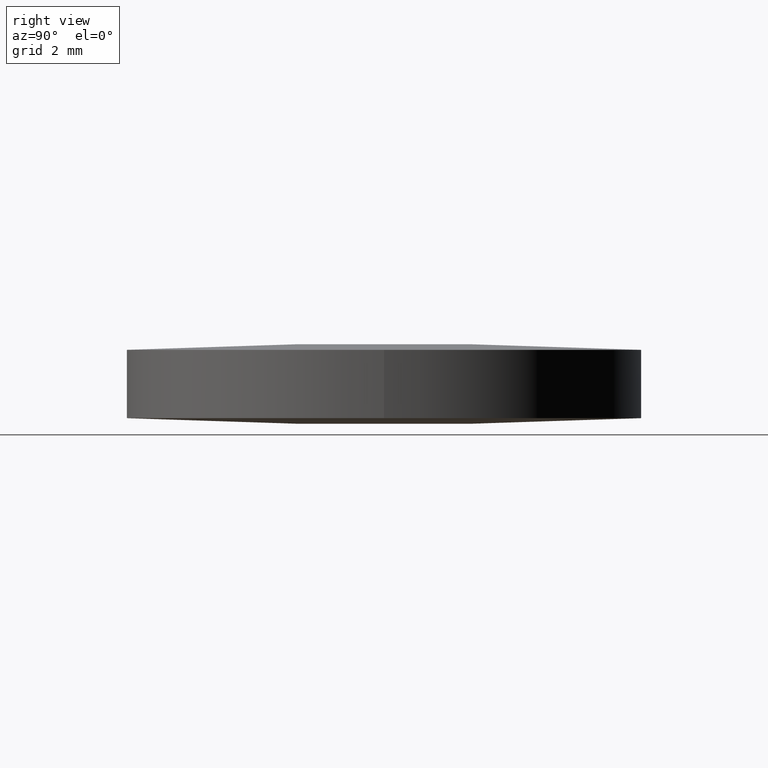
[diagram: clean part render]
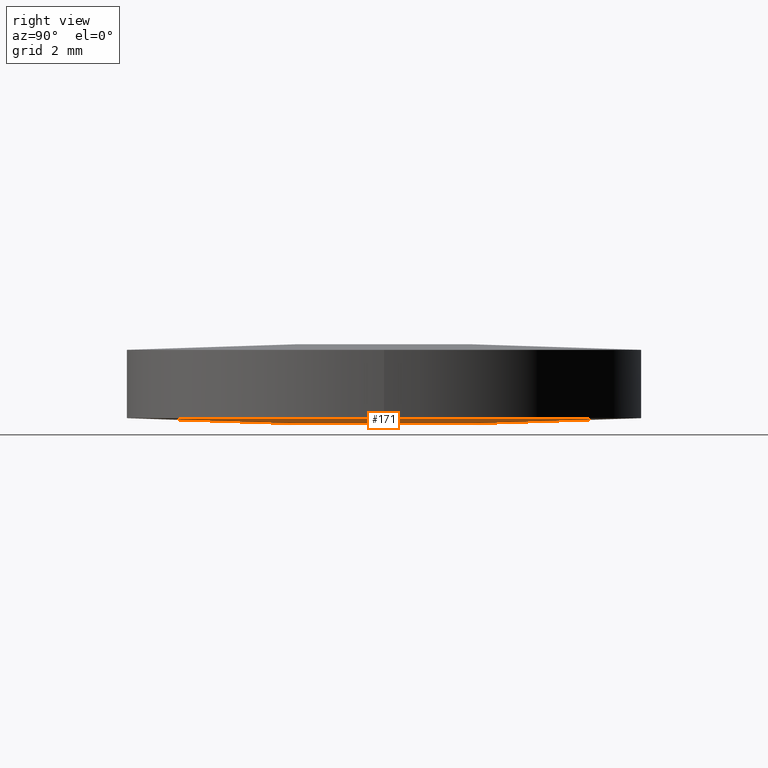
[diagram: same view with one face highlighted and labeled with its STEP entity id]
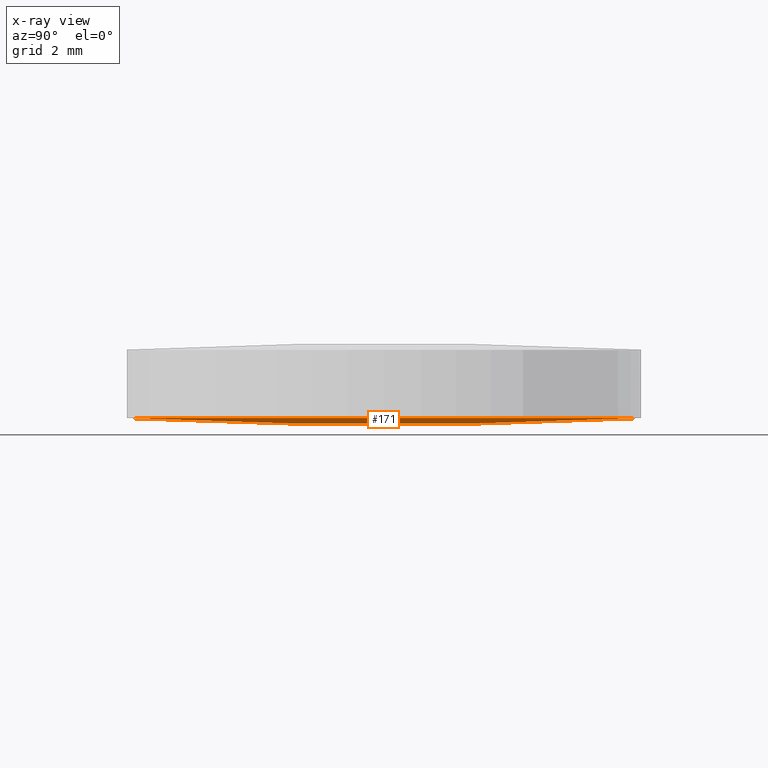
[diagram: x-ray of the same camera — body ghosted, the highlighted face saturated]
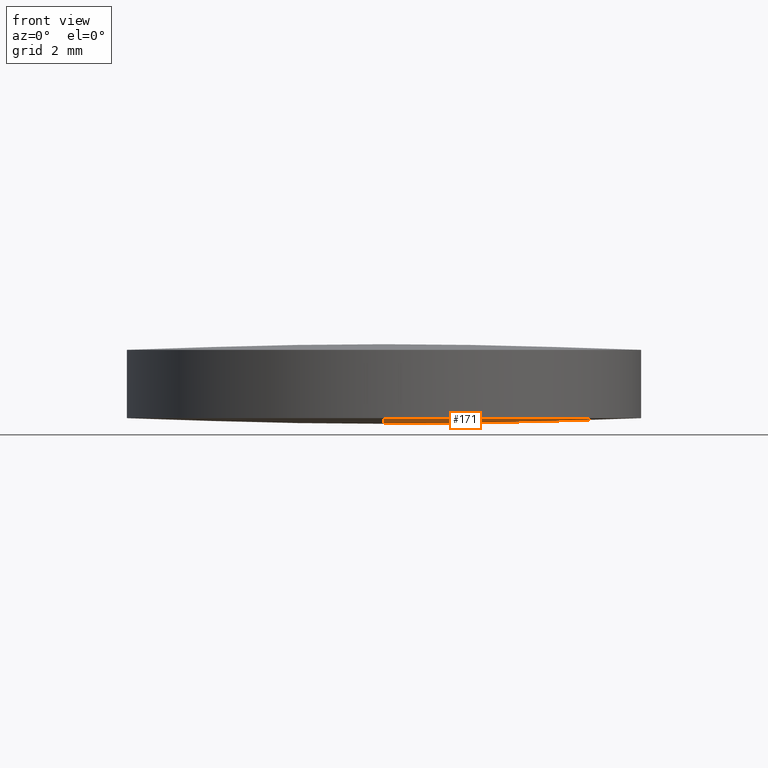
[diagram: same view with one face highlighted and labeled with its STEP entity id]
A machine part, right view. The second image highlights one B-rep face of the part: STEP entity #171.
The next image is the same camera in x-ray: the body ghosted, the highlighted face saturated — about 0% of this face is hidden behind the body in this view.
A second angle (front view) of the same face is appended — the face is thin or edge-on in the first view.
In plain terms, the highlighted face is a freeform B-spline surface patch.
Its self-contained STEP definition (entity closure, byte-faithful):
#6 = AXIS2_PLACEMENT_3D ( 'NONE', #287, #16, #84 ) ;
#14 = CARTESIAN_POINT ( 'NONE',  ( 1.990587361894917900E-014, 6.426137571815884200, 0.1597864493476375300 ) ) ;
#16 = DIRECTION ( 'NONE',  ( -0.0000000000000000000, -0.0000000000000000000, -1.000000000000000000 ) ) ;
#19 = AXIS2_PLACEMENT_3D ( 'NONE', #210, #139, #185 ) ;
#33 = CARTESIAN_POINT ( 'NONE',  ( 2.127807646056743900, 6.426137571815883300, 0.1597864493476376100 ) ) ;
#45 = CARTESIAN_POINT ( 'NONE',  ( 6.349999999999999600, 1.221245327087670000E-015, 0.1560202719460870000 ) ) ;
#57 = CARTESIAN_POINT ( 'NONE',  ( 1.895048814194306300E-014, 2.143812045025231100, -0.05330606618906481900 ) ) ;
#58 = CARTESIAN_POINT ( 'NONE',  ( 1.798689765139404300E-014, -2.143812045025180100, -0.05330606618906638000 ) ) ;
#81 = CARTESIAN_POINT ( 'NONE',  ( 6.380174810760535400, -6.426137571815834400, 0.3174890719976943300 ) ) ;
#84 = DIRECTION ( 'NONE',  ( 1.000000000000000000, 0.0000000000000000000, 0.0000000000000000000 ) ) ;
#97 = EDGE_LOOP ( 'NONE', ( #144, #141, #113 ) ) ;
#98 = CARTESIAN_POINT ( 'NONE',  ( 2.127807646056740800, -6.426137571815833600, 0.1597864493476376100 ) ) ;
#99 = VERTEX_POINT ( 'NONE', #177 ) ;
#113 = ORIENTED_EDGE ( 'NONE', *, *, #278, .T. ) ;
#114 = VERTEX_POINT ( 'NONE', #205 ) ;
#124 = DIRECTION ( 'NONE',  ( 1.000000000000000000, 1.776356839400250500E-015, 0.0000000000000000000 ) ) ;
#132 = CARTESIAN_POINT ( 'NONE',  ( 6.390702650715328800, -2.143812045025181400, 0.1046567794205416900 ) ) ;
#134 = CARTESIAN_POINT ( 'NONE',  ( 6.390702650715329700, 2.143812045025229800, 0.1046567794205432900 ) ) ;
#136 = CARTESIAN_POINT ( 'NONE',  ( 2.131318712605339900, -2.143812045025180500, -0.05330606618906632400 ) ) ;
#139 = DIRECTION ( 'NONE',  ( 1.000000000000000000, -2.247376333165669900E-016, 3.291634602124400000E-017 ) ) ;
#141 = ORIENTED_EDGE ( 'NONE', *, *, #211, .T. ) ;
#144 = ORIENTED_EDGE ( 'NONE', *, *, #186, .T. ) ;
#155 = CARTESIAN_POINT ( 'NONE',  ( 4.254965587279183800, 6.426137571815883300, 0.2123646930590614400 ) ) ;
#168 =( BOUNDED_SURFACE ( )  B_SPLINE_SURFACE ( 3, 3, ( 
 ( #284, #98, #199, #81 ),
 ( #58, #136, #206, #132 ),
 ( #57, #204, #259, #134 ),
 ( #14, #33, #155, #202 ) ),
 .UNSPECIFIED., .F., .F., .T. ) 
 B_SPLINE_SURFACE_WITH_KNOTS ( ( 4, 4 ),
 ( 4, 4 ),
 ( 0.0000000000000000000, 1.000000000000000000 ),
 ( 0.0000000000000000000, 1.000000000000000000 ),
 .UNSPECIFIED. ) 
 GEOMETRIC_REPRESENTATION_ITEM ( )  RATIONAL_B_SPLINE_SURFACE ( (
 ( 1.000000000000000000, 0.9997964399850740600, 0.9997964399850740600, 1.000000000000000000),
 ( 0.9991761461750572300, 0.9989727538638282200, 0.9989727538638282200, 0.9991761461750572300),
 ( 0.9991761461750572300, 0.9989727538638282200, 0.9989727538638282200, 0.9991761461750572300),
 ( 1.000000000000000000, 0.9997964399850740600, 0.9997964399850740600, 1.000000000000000000) ) ) 
 REPRESENTATION_ITEM ( '' )  SURFACE ( )  );
#171 = ADVANCED_FACE ( 'NONE', ( #269 ), #168, .T. ) ;
#177 = CARTESIAN_POINT ( 'NONE',  ( 1.988888661005132700E-014, 6.349999999999970300, 0.1560202719460852300 ) ) ;
#178 = CIRCLE ( 'NONE', #6, 6.349999999999999600 ) ;
#185 = DIRECTION ( 'NONE',  ( -2.247376333165669900E-016, -1.000000000000000000, -4.293205818349405500E-016 ) ) ;
#186 = EDGE_CURVE ( 'NONE', #280, #114, #178, .T. ) ;
#199 = CARTESIAN_POINT ( 'NONE',  ( 4.254965587279181200, -6.426137571815833600, 0.2123646930590614700 ) ) ;
#200 = AXIS2_PLACEMENT_3D ( 'NONE', #272, #221, #124 ) ;
#202 = CARTESIAN_POINT ( 'NONE',  ( 6.380174810760538900, 6.426137571815882400, 0.3174890719976943300 ) ) ;
#204 = CARTESIAN_POINT ( 'NONE',  ( 2.131318712605341700, 2.143812045025230700, -0.05330606618906474900 ) ) ;
#205 = CARTESIAN_POINT ( 'NONE',  ( 1.703471866693095400E-014, -6.349999999999920600, 0.1560202719460852300 ) ) ;
#206 = CARTESIAN_POINT ( 'NONE',  ( 4.261986648307239300, -2.143812045025181000, -0.0006410638305338854600 ) ) ;
#210 = CARTESIAN_POINT ( 'NONE',  ( 1.421085471520200100E-014, 4.973799150320700000E-014, 129.3000000000000400 ) ) ;
#211 = EDGE_CURVE ( 'NONE', #114, #99, #282, .T. ) ;
#221 = DIRECTION ( 'NONE',  ( -0.0000000000000000000, -0.0000000000000000000, -1.000000000000000000 ) ) ;
#259 = CARTESIAN_POINT ( 'NONE',  ( 4.261986648307241100, 2.143812045025230300, -0.0006410638305323000400 ) ) ;
#269 = FACE_OUTER_BOUND ( 'NONE', #97, .T. ) ;
#272 = CARTESIAN_POINT ( 'NONE',  ( 2.498001805406600200E-016, 1.221245327087670000E-015, 0.1560202719460870000 ) ) ;
#278 = EDGE_CURVE ( 'NONE', #99, #280, #291, .T. ) ;
#280 = VERTEX_POINT ( 'NONE', #45 ) ;
#282 = CIRCLE ( 'NONE', #19, 129.3000000000000400 ) ;
#284 = CARTESIAN_POINT ( 'NONE',  ( 1.701748372043604600E-014, -6.426137571815832700, 0.1597864493476375300 ) ) ;
#287 = CARTESIAN_POINT ( 'NONE',  ( 2.498001805406600200E-016, 1.221245327087670000E-015, 0.1560202719460870000 ) ) ;
#291 = CIRCLE ( 'NONE', #200, 6.349999999999999600 ) ;